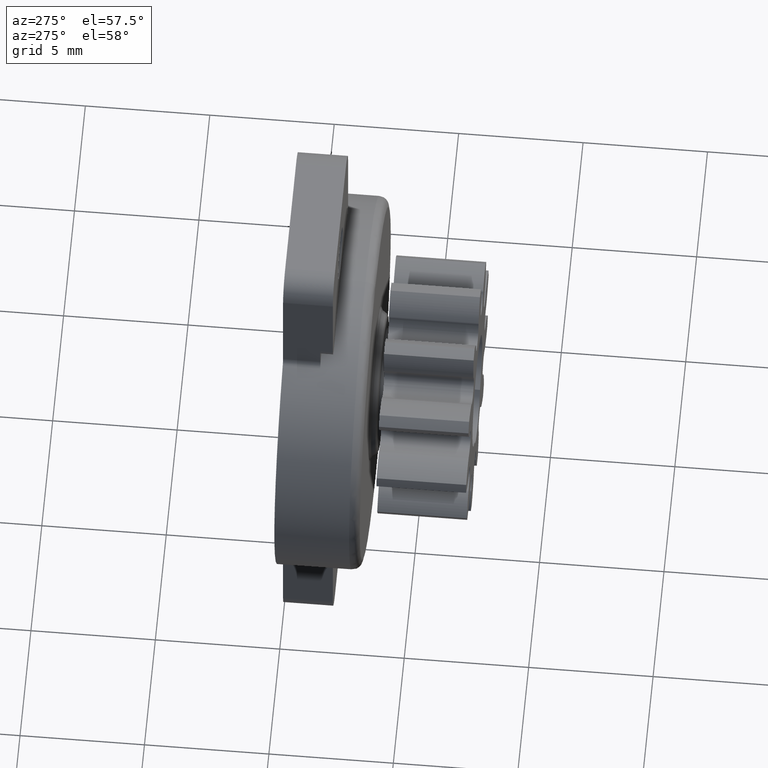
[diagram: clean part render]
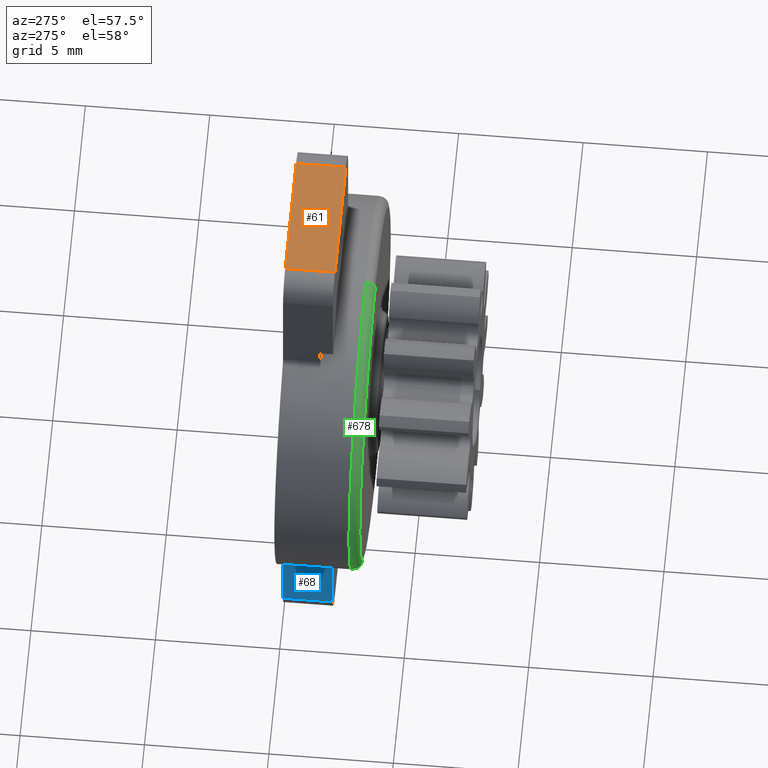
[diagram: same view with three faces highlighted in distinct colors, each labeled with its STEP entity id]
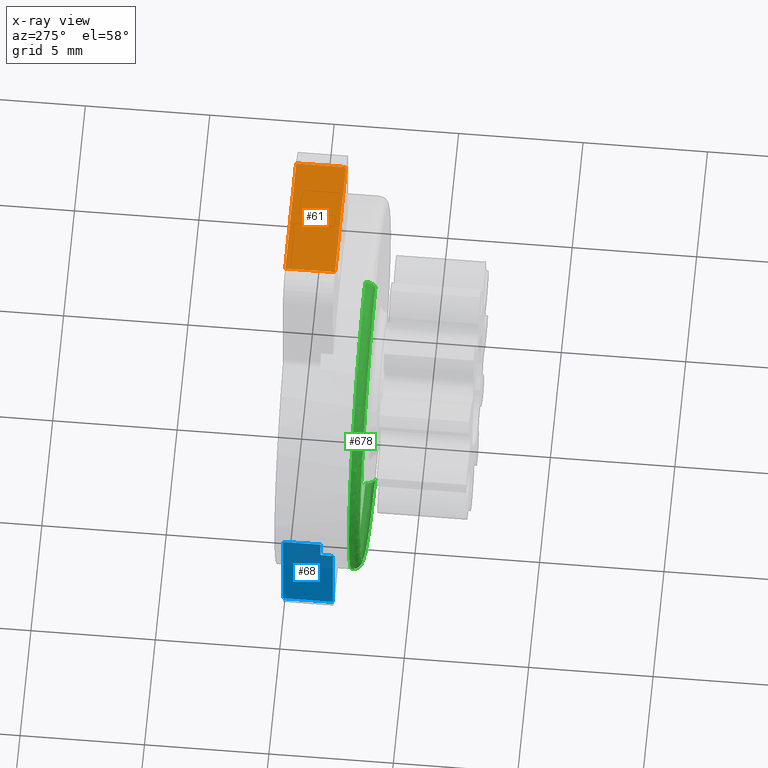
[diagram: x-ray of the same camera — body ghosted, the three highlighted faces saturated]
A machine part, auxiliary view with three faces highlighted in distinct colors.
The next image is the same camera in x-ray (body ghosted, the three faces saturated) — at least one of them is partly hidden behind the body in this view.
Their STEP definitions:

[orange] entity #61 — the highlighted planar face has unit normal (0, -0, 1).
#61=ADVANCED_FACE('',(#901),#900,.T.);
#900=PLANE('',#7246);
#901=FACE_OUTER_BOUND('',#7247,.T.);
#7243=CARTESIAN_POINT('',(-3.00000000873E+00,-2.20000000000E+00,1.20000016000E+01));
#7244=DIRECTION('',(0.00000000000E+00,-0.00000000000E+00,1.00000000000E+00));
#7245=DIRECTION('',(1.00000000000E+00,0.00000000000E+00,-0.00000000000E+00));
#7246=AXIS2_PLACEMENT_3D('',#7243,#7244,#7245);
#7247=EDGE_LOOP('',(#10584,#10585,#10586,#10587));
#10584=ORIENTED_EDGE('',*,*,#14353,.T.);
#10585=ORIENTED_EDGE('',*,*,#14281,.F.);
#10586=ORIENTED_EDGE('',*,*,#14365,.F.);
#10587=ORIENTED_EDGE('',*,*,#14327,.T.);
#14281=EDGE_CURVE('',#16225,#16182,#16232,.T.);
#14327=EDGE_CURVE('',#16546,#16539,#16547,.T.);
#14353=EDGE_CURVE('',#16539,#16182,#16726,.T.);
#14365=EDGE_CURVE('',#16546,#16225,#16798,.T.);
#16182=VERTEX_POINT('',#28900);
#16225=VERTEX_POINT('',#28929);
#16232=LINE('',#28934,#28935);
#16539=VERTEX_POINT('',#29132);
#16546=VERTEX_POINT('',#29137);
#16547=LINE('',#29138,#29139);
#16726=LINE('',#29257,#29258);
#16798=LINE('',#29293,#29294);
#28900=CARTESIAN_POINT('',(-2.50000000000E+00,-2.00000000000E+00,1.20000016000E+01));
#28929=CARTESIAN_POINT('',(2.50000008727E+00,-2.00000000000E+00,1.20000000954E+01));
#28934=CARTESIAN_POINT('',(2.50000008727E+00,-2.00000000000E+00,1.20000016000E+01));
#28935=VECTOR('',#28936,5.00000008727E+00);
#28936=DIRECTION('',(-1.00000000000E+00,0.00000000000E+00,0.00000000000E+00));
#29132=CARTESIAN_POINT('',(-2.50000000000E+00,0.00000000000E+00,1.20000016000E+01));
#29137=CARTESIAN_POINT('',(2.50000008727E+00,0.00000000000E+00,1.20000000954E+01));
#29138=CARTESIAN_POINT('',(2.50000008727E+00,0.00000000000E+00,1.20000016000E+01));
#29139=VECTOR('',#29140,5.00000008727E+00);
#29140=DIRECTION('',(-1.00000000000E+00,0.00000000000E+00,0.00000000000E+00));
#29257=CARTESIAN_POINT('',(-2.50000000000E+00,0.00000000000E+00,1.20000016000E+01));
#29258=VECTOR('',#29259,2.00000000000E+00);
#29259=DIRECTION('',(0.00000000000E+00,-1.00000000000E+00,0.00000000000E+00));
#29293=CARTESIAN_POINT('',(2.50000008727E+00,0.00000000000E+00,1.20000000954E+01));
#29294=VECTOR('',#29295,2.00000000000E+00);
#29295=DIRECTION('',(0.00000000000E+00,-1.00000000000E+00,0.00000000000E+00));

[blue] entity #68 — the highlighted planar face has unit normal (-1, 0, 0).
#68=ADVANCED_FACE('',(#971),#970,.T.);
#970=PLANE('',#7281);
#971=FACE_OUTER_BOUND('',#7282,.T.);
#7278=CARTESIAN_POINT('',(-3.50000000000E+00,-2.20000000000E+00,-1.14188244635E+01));
#7279=DIRECTION('',(-1.00000000000E+00,0.00000000000E+00,0.00000000000E+00));
#7280=DIRECTION('',(0.00000000000E+00,0.00000000000E+00,1.00000000000E+00));
#7281=AXIS2_PLACEMENT_3D('',#7278,#7279,#7280);
#7282=EDGE_LOOP('',(#10616,#10617,#10618,#10619,#10620,#10621));
#10616=ORIENTED_EDGE('',*,*,#14306,.F.);
#10617=ORIENTED_EDGE('',*,*,#14356,.T.);
#10618=ORIENTED_EDGE('',*,*,#14337,.T.);
#10619=ORIENTED_EDGE('',*,*,#14371,.T.);
#10620=ORIENTED_EDGE('',*,*,#14284,.F.);
#10621=ORIENTED_EDGE('',*,*,#14301,.F.);
#14284=EDGE_CURVE('',#16252,#16253,#16254,.T.);
#14301=EDGE_CURVE('',#16363,#16252,#16370,.T.);
#14306=EDGE_CURVE('',#16398,#16363,#16405,.T.);
#14337=EDGE_CURVE('',#16616,#16609,#16617,.T.);
#14356=EDGE_CURVE('',#16398,#16616,#16744,.T.);
#14371=EDGE_CURVE('',#16609,#16253,#16834,.T.);
#16252=VERTEX_POINT('',#28947);
#16253=VERTEX_POINT('',#28948);
#16254=LINE('',#28949,#28950);
#16363=VERTEX_POINT('',#29018);
#16370=LINE('',#29023,#29024);
#16398=VERTEX_POINT('',#29042);
#16405=LINE('',#29047,#29048);
#16609=VERTEX_POINT('',#29178);
#16616=VERTEX_POINT('',#29183);
#16617=LINE('',#29184,#29185);
#16744=LINE('',#29266,#29267);
#16834=LINE('',#29311,#29312);
#28947=CARTESIAN_POINT('',(-3.50000000000E+00,-2.00000000000E+00,-7.58711560000E+00));
#28948=CARTESIAN_POINT('',(-3.50000009537E+00,-2.00000000000E+00,-1.09999999476E+01));
#28949=CARTESIAN_POINT('',(-3.50000000000E+00,-2.00000000000E+00,-7.58711560000E+00));
#28950=VECTOR('',#28951,3.41288434764E+00);
#28951=DIRECTION('',(0.00000000000E+00,0.00000000000E+00,-1.00000000000E+00));
#29018=CARTESIAN_POINT('',(-3.50000000000E+00,-1.50000000000E+00,-7.58711560000E+00));
#29023=CARTESIAN_POINT('',(-3.50000000000E+00,-1.50000000000E+00,-7.58711560000E+00));
#29024=VECTOR('',#29025,5.00000000000E-01);
#29025=DIRECTION('',(0.00000000000E+00,-1.00000000000E+00,0.00000000000E+00));
#29042=CARTESIAN_POINT('',(-3.50000000000E+00,-1.50000000000E+00,-6.81175536540E+00));
#29047=CARTESIAN_POINT('',(-3.50000000000E+00,-1.50000000000E+00,-6.81175536540E+00));
#29048=VECTOR('',#29049,7.75360234605E-01);
#29049=DIRECTION('',(0.00000000000E+00,0.00000000000E+00,-1.00000000000E+00));
#29178=CARTESIAN_POINT('',(-3.50000000000E+00,0.00000000000E+00,-1.10000000000E+01));
#29183=CARTESIAN_POINT('',(-3.50000000000E+00,0.00000000000E+00,-6.81175536540E+00));
#29184=CARTESIAN_POINT('',(-3.50000000000E+00,0.00000000000E+00,-6.81175536540E+00));
#29185=VECTOR('',#29186,4.18824463460E+00);
#29186=DIRECTION('',(0.00000000000E+00,0.00000000000E+00,-1.00000000000E+00));
#29266=CARTESIAN_POINT('',(-3.50000000000E+00,-1.50000000000E+00,-6.81175536540E+00));
#29267=VECTOR('',#29268,1.50000000000E+00);
#29268=DIRECTION('',(0.00000000000E+00,1.00000000000E+00,0.00000000000E+00));
#29311=CARTESIAN_POINT('',(-3.50000000000E+00,0.00000000000E+00,-1.10000000000E+01));
#29312=VECTOR('',#29313,2.00000000000E+00);
#29313=DIRECTION('',(0.00000000000E+00,-1.00000000000E+00,0.00000000000E+00));

[green] entity #678 — the highlighted face is a freeform B-spline surface patch.
#678=ADVANCED_FACE('',(#7073),#7072,.T.);
#7072=( BOUNDED_SURFACE() B_SPLINE_SURFACE( 2,2,((#10386,#10387,#10388,#10389,#10390),(#10391,#10392,#10393,#10394,#10395),(#10396,#10397,#10398,#10399,#10400),(#10401,#10402,#10403,#10404,#10405),(#10406,#10407,#10408,#10409,#10410)), .UNSPECIFIED.,.F.,.F.,.F.) B_SPLINE_SURFACE_WITH_KNOTS((3,2,3),(3,2,3),(0.00000000000E+00,5.00000000000E-01,1.00000000000E+00),(0.00000000000E+00,5.00000000000E-01,1.00000000000E+00), .UNSPECIFIED. ) GEOMETRIC_REPRESENTATION_ITEM() RATIONAL_B_SPLINE_SURFACE(((1.00000000000E+00,7.07106765760E-01,1.00000000000E+00,7.07106765760E-01,1.00000000000E+00),(7.07106781187E-01,4.99999989092E-01,7.07106781187E-01,4.99999989092E-01,7.07106781187E-01),(1.00000000000E+00,7.07106765760E-01,1.00000000000E+00,7.07106765760E-01,1.00000000000E+00),(7.07106781187E-01,4.99999989092E-01,7.07106781187E-01,4.99999989092E-01,7.07106781187E-01),(1.00000000000E+00,7.07106765760E-01,1.00000000000E+00,7.07106765760E-01,1.00000000000E+00))) REPRESENTATION_ITEM('') SURFACE() );
#7073=FACE_OUTER_BOUND('',#10411,.T.);
#10386=CARTESIAN_POINT('',(-9.18454768314E-16,-2.99999995499E+00,7.50000002407E+00));
#10387=CARTESIAN_POINT('',(-9.18454768314E-16,-3.40000001745E+00,7.50000002407E+00));
#10388=CARTESIAN_POINT('',(-8.69470506512E-16,-3.40000000000E+00,7.09999996160E+00));
#10389=CARTESIAN_POINT('',(-8.20486244709E-16,-3.39999998255E+00,6.69999989914E+00));
#10390=CARTESIAN_POINT('',(-8.20486248984E-16,-2.99999992008E+00,6.69999993404E+00));
#10391=CARTESIAN_POINT('',(-7.50000002407E+00,-2.99999995499E+00,7.50000002407E+00));
#10392=CARTESIAN_POINT('',(-7.50000002407E+00,-3.40000001745E+00,7.50000002407E+00));
#10393=CARTESIAN_POINT('',(-7.09999996160E+00,-3.40000000000E+00,7.09999996160E+00));
#10394=CARTESIAN_POINT('',(-6.69999989914E+00,-3.39999998255E+00,6.69999989914E+00));
#10395=CARTESIAN_POINT('',(-6.69999993404E+00,-2.99999992008E+00,6.69999993404E+00));
#10396=CARTESIAN_POINT('',(-7.50000002407E+00,-2.99999995499E+00,-4.59212217160E-16));
#10397=CARTESIAN_POINT('',(-7.50000002407E+00,-3.40000001745E+00,-4.59212217160E-16));
#10398=CARTESIAN_POINT('',(-7.09999996160E+00,-3.40000000000E+00,-4.34720895166E-16));
#10399=CARTESIAN_POINT('',(-6.69999989914E+00,-3.39999998255E+00,-4.10229573171E-16));
#10400=CARTESIAN_POINT('',(-6.69999993404E+00,-2.99999992008E+00,-4.10229575308E-16));
#10401=CARTESIAN_POINT('',(-7.50000002407E+00,-2.99999995499E+00,-7.50000002407E+00));
#10402=CARTESIAN_POINT('',(-7.50000002407E+00,-3.40000001745E+00,-7.50000002407E+00));
#10403=CARTESIAN_POINT('',(-7.09999996160E+00,-3.40000000000E+00,-7.09999996160E+00));
#10404=CARTESIAN_POINT('',(-6.69999989914E+00,-3.39999998255E+00,-6.69999989914E+00));
#10405=CARTESIAN_POINT('',(-6.69999993404E+00,-2.99999992008E+00,-6.69999993404E+00));
#10406=CARTESIAN_POINT('',(-3.03339938293E-20,-2.99999995499E+00,-7.50000002407E+00));
#10407=CARTESIAN_POINT('',(-3.03339938293E-20,-3.40000001745E+00,-7.50000002407E+00));
#10408=CARTESIAN_POINT('',(-2.87161805777E-20,-3.40000000000E+00,-7.09999996160E+00));
#10409=CARTESIAN_POINT('',(-2.70983673260E-20,-3.39999998255E+00,-6.69999989914E+00));
#10410=CARTESIAN_POINT('',(-2.70983674672E-20,-2.99999992008E+00,-6.69999993404E+00));
#10411=EDGE_LOOP('',(#14242,#14243,#14244,#14245));
#14242=ORIENTED_EDGE('',*,*,#14315,.F.);
#14243=ORIENTED_EDGE('',*,*,#16174,.F.);
#14244=ORIENTED_EDGE('',*,*,#16175,.T.);
#14245=ORIENTED_EDGE('',*,*,#16176,.T.);
#14315=EDGE_CURVE('',#16460,#16459,#16467,.T.);
#16174=EDGE_CURVE('',#28850,#16460,#28851,.T.);
#16175=EDGE_CURVE('',#28850,#28857,#28858,.T.);
#16176=EDGE_CURVE('',#28857,#16459,#28864,.T.);
#16459=VERTEX_POINT('',#29083);
#16460=VERTEX_POINT('',#29084);
#16467=CIRCLE('',#29092,7.10000000000E+00);
#28850=VERTEX_POINT('',#36012);
#28851=(BOUNDED_CURVE() B_SPLINE_CURVE(2,(#36013,#36014,#36015),.UNSPECIFIED.,.F.,.F.) B_SPLINE_CURVE_WITH_KNOTS((3,3),(0.00000000000E+00,4.99999960263E-01),.UNSPECIFIED.) CURVE() GEOMETRIC_REPRESENTATION_ITEM() RATIONAL_B_SPLINE_CURVE((1.00000000000E+00,7.07106765760E-01,1.00000000000E+00)) REPRESENTATION_ITEM('') );
#28857=VERTEX_POINT('',#36016);
#28858=CIRCLE('',#36020,7.50000002407E+00);
#28864=(BOUNDED_CURVE() B_SPLINE_CURVE(2,(#36021,#36022,#36023),.UNSPECIFIED.,.F.,.F.) B_SPLINE_CURVE_WITH_KNOTS((3,3),(0.00000000000E+00,5.00000000000E-01),.UNSPECIFIED.) CURVE() GEOMETRIC_REPRESENTATION_ITEM() RATIONAL_B_SPLINE_CURVE((7.50000000000E-01,5.30330074320E-01,7.50000000000E-01)) REPRESENTATION_ITEM('') );
#29083=CARTESIAN_POINT('',(0.00000000000E+00,-3.40000000000E+00,-7.10000000000E+00));
#29084=CARTESIAN_POINT('',(2.96059473233E-16,-3.40000000000E+00,7.10000000000E+00));
#29089=CARTESIAN_POINT('',(0.00000000000E+00,-3.40000000000E+00,0.00000000000E+00));
#29090=DIRECTION('',(0.00000000000E+00,-1.00000000000E+00,-0.00000000000E+00));
#29091=DIRECTION('',(-1.22460635382E-16,0.00000000000E+00,-1.00000000000E+00));
#29092=AXIS2_PLACEMENT_3D('',#29089,#29090,#29091);
#36012=CARTESIAN_POINT('',(8.88178419700E-16,-2.99999992008E+00,7.50000002407E+00));
#36013=CARTESIAN_POINT('',(-9.18454768314E-16,-2.99999995499E+00,7.50000002407E+00));
#36014=CARTESIAN_POINT('',(-9.18454768314E-16,-3.40000001745E+00,7.50000002407E+00));
#36015=CARTESIAN_POINT('',(-8.69470506512E-16,-3.40000000000E+00,7.09999996160E+00));
#36016=CARTESIAN_POINT('',(0.00000000000E+00,-2.99999992008E+00,-7.50000002407E+00));
#36017=CARTESIAN_POINT('',(0.00000000000E+00,-2.99999992008E+00,0.00000000000E+00));
#36018=DIRECTION('',(0.00000000000E+00,-1.00000000000E+00,-0.00000000000E+00));
#36019=DIRECTION('',(-1.22460635382E-16,0.00000000000E+00,-1.00000000000E+00));
#36020=AXIS2_PLACEMENT_3D('',#36017,#36018,#36019);
#36021=CARTESIAN_POINT('',(1.48029736617E-15,-2.99999995499E+00,-7.50000002407E+00));
#36022=CARTESIAN_POINT('',(8.37382662900E-16,-3.40000001745E+00,-7.50000002407E+00));
#36023=CARTESIAN_POINT('',(5.92118946467E-16,-3.40000000000E+00,-7.09999996160E+00));